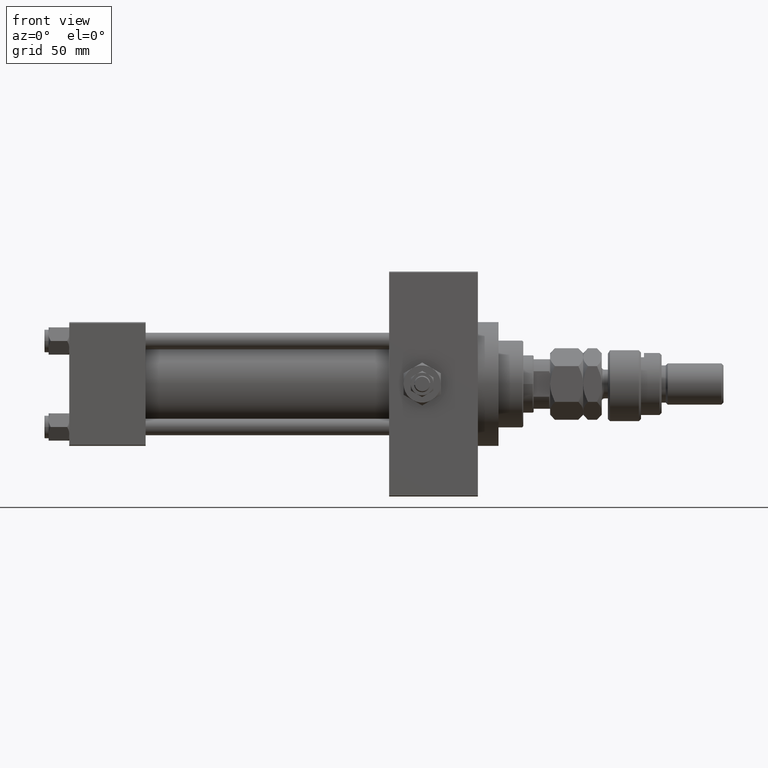
[diagram: clean part render]
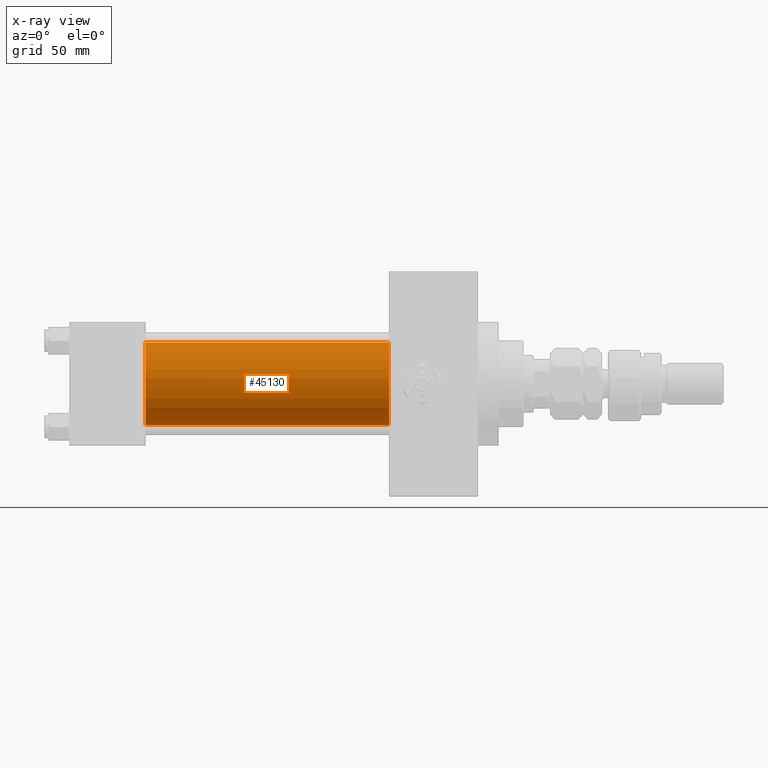
[diagram: x-ray — body ghosted, one internal face saturated and labeled with its STEP entity id]
A machine part, front view, then the same camera in x-ray: the body is ghosted and one INTERNAL B-rep face — a face not visible from any outside direction — is saturated and labeled: STEP entity #45130.
In plain terms, the highlighted cylindrical surface (partial cylindrical patch) has radius 20 mm, axis along (-1, -0, -0).
Its self-contained STEP definition (entity closure, byte-faithful):
#205 = ORIENTED_EDGE ( 'NONE', *, *, #328, .F. ) ;
#328 = EDGE_CURVE ( 'NONE', #26601, #17299, #48831, .T. ) ;
#617 = AXIS2_PLACEMENT_3D ( 'NONE', #35867, #43672, #12659 ) ;
#1039 = DIRECTION ( 'NONE',  ( 0.000000000000000000, 0.000000000000000000, -1.000000000000000000 ) ) ;
#1593 = DIRECTION ( 'NONE',  ( 0.000000000000000000, 0.000000000000000000, -1.000000000000000000 ) ) ;
#3124 = LINE ( 'NONE', #35163, #21229 ) ;
#9096 = LINE ( 'NONE', #24711, #51483 ) ;
#12523 = ORIENTED_EDGE ( 'NONE', *, *, #17714, .T. ) ;
#12659 = DIRECTION ( 'NONE',  ( 0.000000000000000000, 0.000000000000000000, 1.000000000000000000 ) ) ;
#16619 = CARTESIAN_POINT ( 'NONE',  ( 37.00000000000000000, -2.602085213965210642E-15, 20.00000000000000000 ) ) ;
#17299 = VERTEX_POINT ( 'NONE', #34743 ) ;
#17714 = EDGE_CURVE ( 'NONE', #37830, #46353, #24417, .T. ) ;
#21229 = VECTOR ( 'NONE', #44450, 1000.000000000000000 ) ;
#21390 = DIRECTION ( 'NONE',  ( 1.000000000000000000, 0.000000000000000000, 0.000000000000000000 ) ) ;
#22064 = AXIS2_PLACEMENT_3D ( 'NONE', #26061, #21390, #1593 ) ;
#22795 = AXIS2_PLACEMENT_3D ( 'NONE', #48997, #37516, #1039 ) ;
#23507 = EDGE_CURVE ( 'NONE', #37830, #26601, #3124, .T. ) ;
#24133 = CYLINDRICAL_SURFACE ( 'NONE', #617, 20.00000000000000000 ) ;
#24417 = CIRCLE ( 'NONE', #22795, 20.00000000000000000 ) ;
#24711 = CARTESIAN_POINT ( 'NONE',  ( 155.0000000000000000, -1.527916156705042519E-16, -20.00000000000000000 ) ) ;
#25091 = CARTESIAN_POINT ( 'NONE',  ( 155.0000000000000000, -1.527916156705042519E-16, -20.00000000000000000 ) ) ;
#26061 = CARTESIAN_POINT ( 'NONE',  ( 37.00000000000000000, -2.602085213965210642E-15, 0.000000000000000000 ) ) ;
#26601 = VERTEX_POINT ( 'NONE', #16619 ) ;
#27813 = ORIENTED_EDGE ( 'NONE', *, *, #34477, .T. ) ;
#28303 = FACE_OUTER_BOUND ( 'NONE', #30733, .T. ) ;
#30706 = ORIENTED_EDGE ( 'NONE', *, *, #23507, .F. ) ;
#30733 = EDGE_LOOP ( 'NONE', ( #12523, #27813, #205, #30706 ) ) ;
#34477 = EDGE_CURVE ( 'NONE', #46353, #17299, #9096, .T. ) ;
#34743 = CARTESIAN_POINT ( 'NONE',  ( 37.00000000000000000, -1.527916156705042519E-16, -20.00000000000000000 ) ) ;
#35163 = CARTESIAN_POINT ( 'NONE',  ( 155.0000000000000000, -2.602085213965210642E-15, 20.00000000000000000 ) ) ;
#35867 = CARTESIAN_POINT ( 'NONE',  ( 155.0000000000000000, -2.602085213965210642E-15, 0.000000000000000000 ) ) ;
#36709 = DIRECTION ( 'NONE',  ( -1.000000000000000000, -0.000000000000000000, -0.000000000000000000 ) ) ;
#37516 = DIRECTION ( 'NONE',  ( 1.000000000000000000, 0.000000000000000000, 0.000000000000000000 ) ) ;
#37830 = VERTEX_POINT ( 'NONE', #49691 ) ;
#43672 = DIRECTION ( 'NONE',  ( -1.000000000000000000, -0.000000000000000000, -0.000000000000000000 ) ) ;
#44450 = DIRECTION ( 'NONE',  ( -1.000000000000000000, -0.000000000000000000, -0.000000000000000000 ) ) ;
#45130 = ADVANCED_FACE ( 'NONE', ( #28303 ), #24133, .F. ) ;
#46353 = VERTEX_POINT ( 'NONE', #25091 ) ;
#48831 = CIRCLE ( 'NONE', #22064, 20.00000000000000000 ) ;
#48997 = CARTESIAN_POINT ( 'NONE',  ( 155.0000000000000000, -2.602085213965210642E-15, 0.000000000000000000 ) ) ;
#49691 = CARTESIAN_POINT ( 'NONE',  ( 155.0000000000000000, -2.602085213965210642E-15, 20.00000000000000000 ) ) ;
#51483 = VECTOR ( 'NONE', #36709, 1000.000000000000000 ) ;